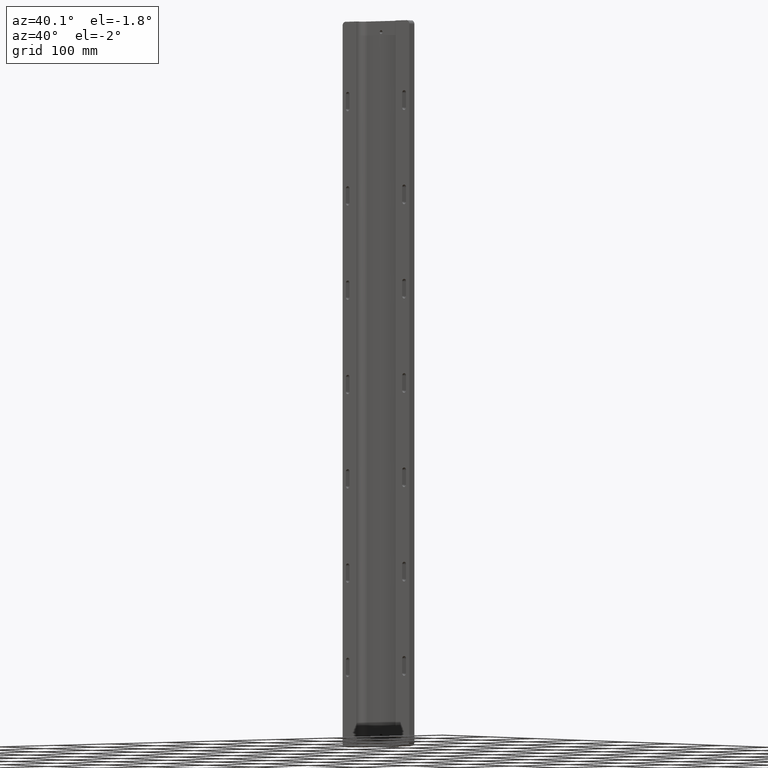
[diagram: clean part render]
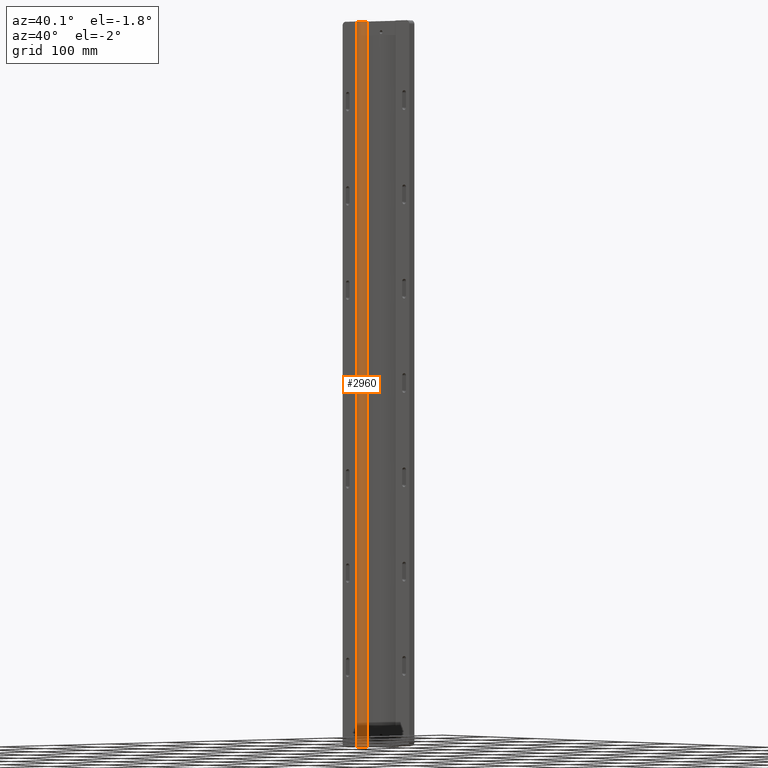
[diagram: same view with one face highlighted and labeled with its STEP entity id]
A machine part, auxiliary view. The second image highlights one B-rep face of the part: STEP entity #2960.
In plain terms, the highlighted cylindrical surface (edge-blend (fillet) strip) has radius 10 mm, axis along (-0, -0, -1).
Its self-contained STEP definition (entity closure, byte-faithful):
#42 = ORIENTED_EDGE ( 'NONE', *, *, #2117, .F. ) ;
#178 = CYLINDRICAL_SURFACE ( 'NONE', #431, 9.999999999999994700 ) ;
#208 = CARTESIAN_POINT ( 'NONE',  ( -25.00000000000007100, -2.671474153004282900E-013, 500.0000000000000000 ) ) ;
#350 = EDGE_LOOP ( 'NONE', ( #5427, #407, #42, #5924 ) ) ;
#407 = ORIENTED_EDGE ( 'NONE', *, *, #2770, .F. ) ;
#431 = AXIS2_PLACEMENT_3D ( 'NONE', #2842, #440, #5360 ) ;
#440 = DIRECTION ( 'NONE',  ( -0.0000000000000000000, -0.0000000000000000000, -1.000000000000000000 ) ) ;
#671 = CARTESIAN_POINT ( 'NONE',  ( -24.99999999999996800, -10.00000000000026300, -500.0000000000000000 ) ) ;
#807 = VERTEX_POINT ( 'NONE', #3811 ) ;
#916 = AXIS2_PLACEMENT_3D ( 'NONE', #671, #1166, #2102 ) ;
#1155 = VERTEX_POINT ( 'NONE', #208 ) ;
#1166 = DIRECTION ( 'NONE',  ( -0.0000000000000000000, -0.0000000000000000000, -1.000000000000000000 ) ) ;
#1425 = DIRECTION ( 'NONE',  ( -0.0000000000000000000, -0.0000000000000000000, -1.000000000000000000 ) ) ;
#1961 = VECTOR ( 'NONE', #3041, 1000.000000000000000 ) ;
#1996 = DIRECTION ( 'NONE',  ( 1.000000000000000000, 0.0000000000000000000, 0.0000000000000000000 ) ) ;
#2056 = DIRECTION ( 'NONE',  ( -0.0000000000000000000, -0.0000000000000000000, -1.000000000000000000 ) ) ;
#2102 = DIRECTION ( 'NONE',  ( 1.000000000000000000, 0.0000000000000000000, 0.0000000000000000000 ) ) ;
#2117 = EDGE_CURVE ( 'NONE', #807, #1155, #2874, .T. ) ;
#2136 = VERTEX_POINT ( 'NONE', #4495 ) ;
#2198 = EDGE_CURVE ( 'NONE', #807, #2412, #4108, .T. ) ;
#2412 = VERTEX_POINT ( 'NONE', #2426 ) ;
#2426 = CARTESIAN_POINT ( 'NONE',  ( -34.99999999999996400, -10.00000000000036600, -500.0000000000000000 ) ) ;
#2770 = EDGE_CURVE ( 'NONE', #1155, #2136, #4821, .T. ) ;
#2842 = CARTESIAN_POINT ( 'NONE',  ( -24.99999999999996800, -10.00000000000026300, 500.0000000000000000 ) ) ;
#2874 = CIRCLE ( 'NONE', #2970, 9.999999999999994700 ) ;
#2960 = ADVANCED_FACE ( 'NONE', ( #4969 ), #178, .F. ) ;
#2970 = AXIS2_PLACEMENT_3D ( 'NONE', #4959, #2056, #1996 ) ;
#3041 = DIRECTION ( 'NONE',  ( -0.0000000000000000000, -0.0000000000000000000, -1.000000000000000000 ) ) ;
#3691 = EDGE_CURVE ( 'NONE', #2412, #2136, #5628, .T. ) ;
#3811 = CARTESIAN_POINT ( 'NONE',  ( -34.99999999999996400, -10.00000000000036600, 500.0000000000000000 ) ) ;
#4108 = LINE ( 'NONE', #5514, #1961 ) ;
#4495 = CARTESIAN_POINT ( 'NONE',  ( -25.00000000000007100, -2.671474153004282900E-013, -500.0000000000000000 ) ) ;
#4821 = LINE ( 'NONE', #5864, #5734 ) ;
#4959 = CARTESIAN_POINT ( 'NONE',  ( -24.99999999999996800, -10.00000000000026300, 500.0000000000000000 ) ) ;
#4969 = FACE_OUTER_BOUND ( 'NONE', #350, .T. ) ;
#5360 = DIRECTION ( 'NONE',  ( -1.000000000000000000, 0.0000000000000000000, 0.0000000000000000000 ) ) ;
#5427 = ORIENTED_EDGE ( 'NONE', *, *, #3691, .T. ) ;
#5514 = CARTESIAN_POINT ( 'NONE',  ( -34.99999999999996400, -10.00000000000036600, 500.0000000000000000 ) ) ;
#5628 = CIRCLE ( 'NONE', #916, 9.999999999999994700 ) ;
#5734 = VECTOR ( 'NONE', #1425, 1000.000000000000000 ) ;
#5864 = CARTESIAN_POINT ( 'NONE',  ( -25.00000000000007100, -2.671474153004282900E-013, 500.0000000000000000 ) ) ;
#5924 = ORIENTED_EDGE ( 'NONE', *, *, #2198, .T. ) ;